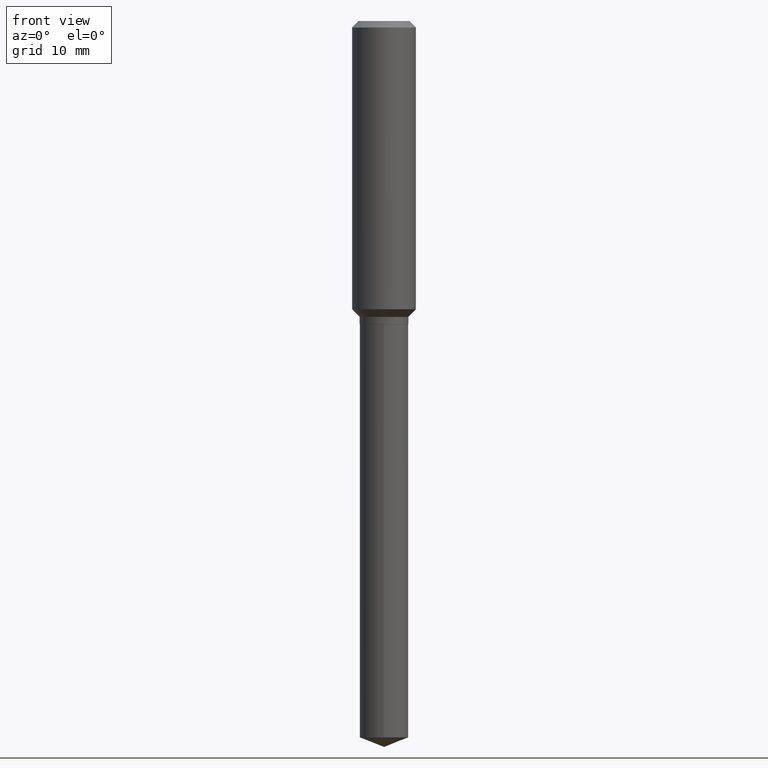
[diagram: clean part render]
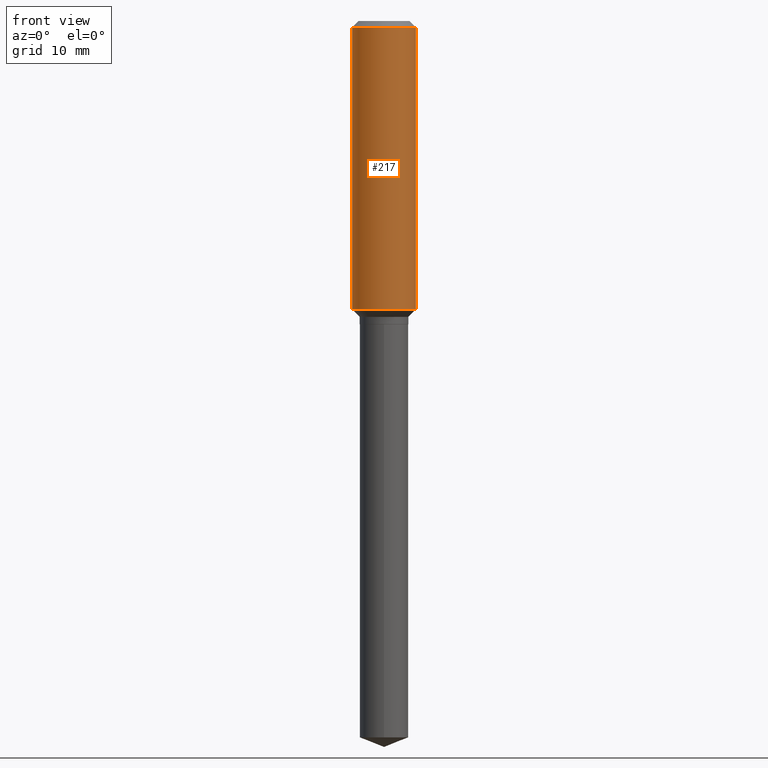
[diagram: same view with one face highlighted and labeled with its STEP entity id]
A machine part, front view. The second image highlights one B-rep face of the part: STEP entity #217.
In plain terms, the highlighted cylindrical surface (edge-blend (fillet) strip) has radius 4.0005 mm, axis along (-0, 0, 1).
Its self-contained STEP definition (entity closure, byte-faithful):
#29 = CARTESIAN_POINT ( 'NONE',  ( -0.1575000000000000844, 1.119104808822158392E-15, -7.747322767151481189E-30 ) ) ;
#34 = DIRECTION ( 'NONE',  ( -2.445468806185136597E-29, 3.491481338843145583E-15, 1.000000000000000000 ) ) ;
#44 = FACE_OUTER_BOUND ( 'NONE', #197, .T. ) ;
#55 = VERTEX_POINT ( 'NONE', #94 ) ;
#62 = LINE ( 'NONE', #29, #143 ) ;
#73 = DIRECTION ( 'NONE',  ( 1.000000000000000000, -6.982962677686267499E-15, 4.876176775795936353E-29 ) ) ;
#75 = DIRECTION ( 'NONE',  ( -2.445468806185136597E-29, 3.491481338843145583E-15, 1.000000000000000000 ) ) ;
#76 = AXIS2_PLACEMENT_3D ( 'NONE', #458, #220, #376 ) ;
#83 = CIRCLE ( 'NONE', #120, 0.1575000000000000011 ) ;
#90 = VECTOR ( 'NONE', #291, 39.37007874015748143 ) ;
#94 = CARTESIAN_POINT ( 'NONE',  ( -0.1575000000000001676, -3.847876543816099199E-15, -1.422599999999999643 ) ) ;
#95 = CARTESIAN_POINT ( 'NONE',  ( 0.1575000000000000844, -1.099816621735587677E-15, 7.679978421878603638E-30 ) ) ;
#98 = EDGE_CURVE ( 'NONE', #464, #174, #247, .T. ) ;
#119 = ORIENTED_EDGE ( 'NONE', *, *, #98, .T. ) ;
#120 = AXIS2_PLACEMENT_3D ( 'NONE', #267, #75, #452 ) ;
#125 = ORIENTED_EDGE ( 'NONE', *, *, #167, .F. ) ;
#138 = CARTESIAN_POINT ( 'NONE',  ( 0.1575000000000000011, -1.209798283909146741E-15, -0.03150000000000019451 ) ) ;
#143 = VECTOR ( 'NONE', #173, 39.37007874015748143 ) ;
#167 = EDGE_CURVE ( 'NONE', #55, #249, #62, .T. ) ;
#173 = DIRECTION ( 'NONE',  ( -2.445468806185136877E-29, 3.491481338843145188E-15, 1.000000000000000000 ) ) ;
#174 = VERTEX_POINT ( 'NONE', #138 ) ;
#189 = CARTESIAN_POINT ( 'NONE',  ( -0.1575000000000000011, -1.419376698583750132E-15, -0.03150000000000019451 ) ) ;
#195 = ORIENTED_EDGE ( 'NONE', *, *, #302, .F. ) ;
#197 = EDGE_LOOP ( 'NONE', ( #125, #456, #119, #195 ) ) ;
#216 = CIRCLE ( 'NONE', #76, 0.1575000000000001676 ) ;
#217 = ADVANCED_FACE ( 'NONE', ( #44 ), #378, .T. ) ;
#220 = DIRECTION ( 'NONE',  ( -2.445468806185136597E-29, 3.491481338843145583E-15, 1.000000000000000000 ) ) ;
#247 = LINE ( 'NONE', #95, #90 ) ;
#249 = VERTEX_POINT ( 'NONE', #189 ) ;
#267 = CARTESIAN_POINT ( 'NONE',  ( 7.703226739483226971E-31, -1.099816621735597538E-16, -0.03150000000000019451 ) ) ;
#274 = EDGE_CURVE ( 'NONE', #55, #464, #216, .T. ) ;
#291 = DIRECTION ( 'NONE',  ( -2.445468806185136877E-29, 3.491481338843145188E-15, 1.000000000000000000 ) ) ;
#302 = EDGE_CURVE ( 'NONE', #249, #174, #83, .T. ) ;
#374 = CARTESIAN_POINT ( 'NONE',  ( 0.000000000000000000, 0.000000000000000000, 0.000000000000000000 ) ) ;
#376 = DIRECTION ( 'NONE',  ( 1.000000000000000000, -6.982962677686267499E-15, 0.000000000000000000 ) ) ;
#378 = CYLINDRICAL_SURFACE ( 'NONE', #459, 0.1575000000000000844 ) ;
#416 = CARTESIAN_POINT ( 'NONE',  ( 0.1575000000000001676, -6.066797974373846649E-15, -1.422599999999999643 ) ) ;
#452 = DIRECTION ( 'NONE',  ( 1.000000000000000000, -6.982962677686265922E-15, 0.000000000000000000 ) ) ;
#456 = ORIENTED_EDGE ( 'NONE', *, *, #274, .T. ) ;
#458 = CARTESIAN_POINT ( 'NONE',  ( 3.478923923678974203E-29, -4.966981352638257591E-15, -1.422599999999999643 ) ) ;
#459 = AXIS2_PLACEMENT_3D ( 'NONE', #374, #34, #73 ) ;
#464 = VERTEX_POINT ( 'NONE', #416 ) ;